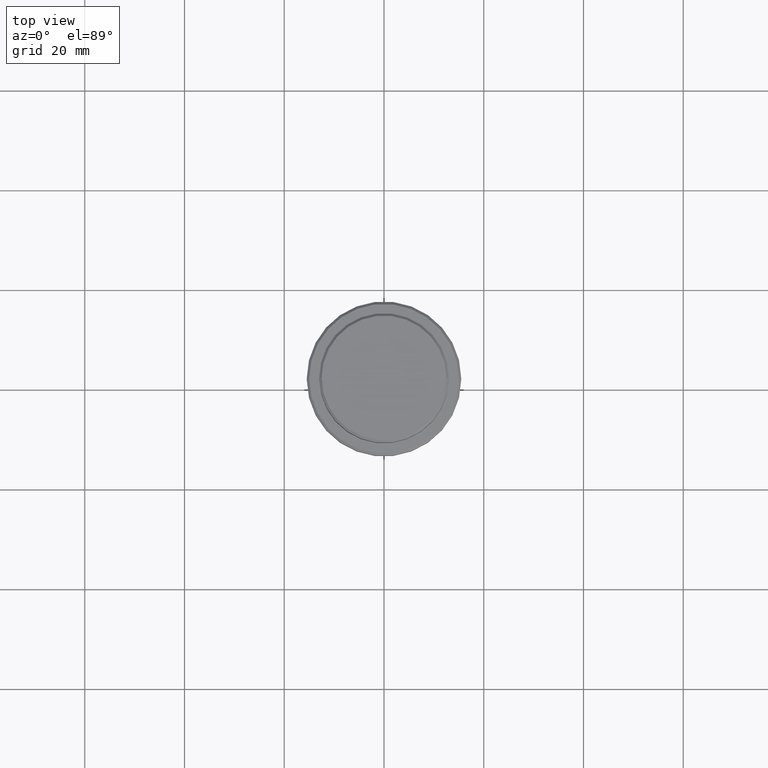
[diagram: clean part render]
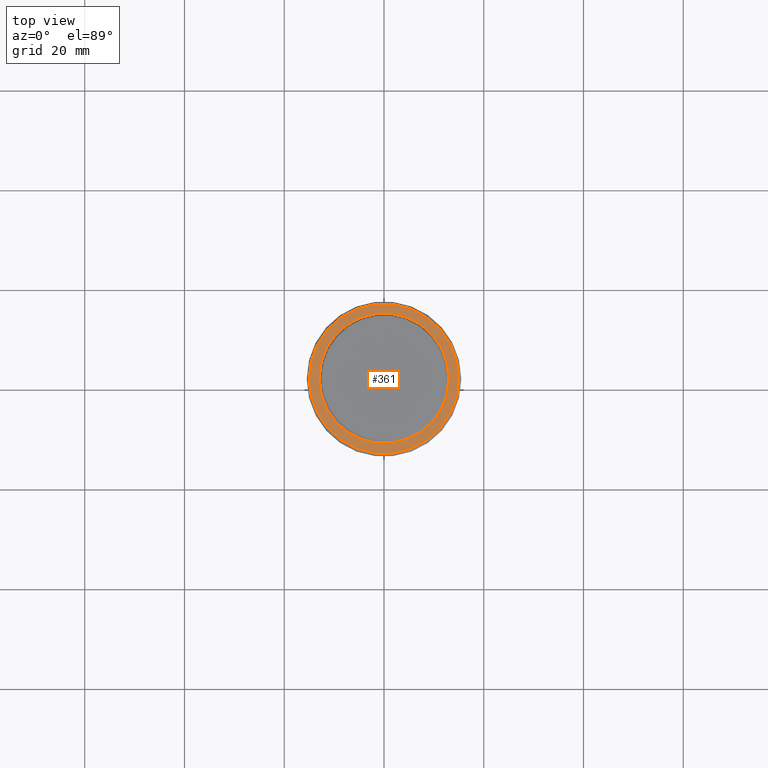
[diagram: same view with one face highlighted and labeled with its STEP entity id]
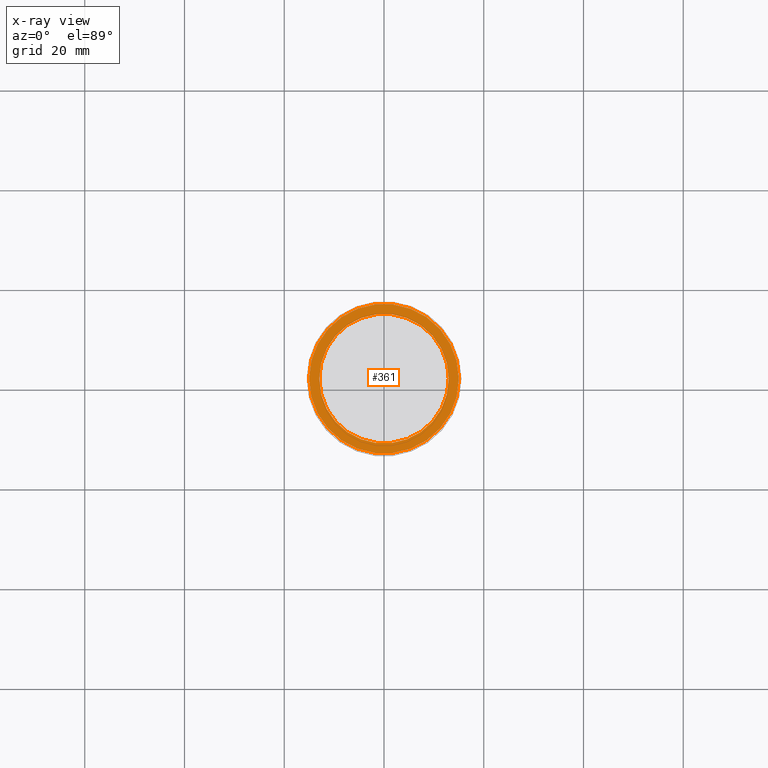
[diagram: x-ray of the same camera — body ghosted, the highlighted face saturated]
A machine part, top view. The second image highlights one B-rep face of the part: STEP entity #361.
The next image is the same camera in x-ray: the body ghosted, the highlighted face saturated — about 0% of this face is hidden behind the body in this view.
In plain terms, the highlighted planar face has unit normal (0, -0, 1).
Its self-contained STEP definition (entity closure, byte-faithful):
#1 = FACE_OUTER_BOUND ( 'NONE', #141, .T. ) ;
#73 = VERTEX_POINT ( 'NONE', #871 ) ;
#141 = EDGE_LOOP ( 'NONE', ( #609, #455 ) ) ;
#184 = CIRCLE ( 'NONE', #712, 12.99999999999999467 ) ;
#202 = EDGE_CURVE ( 'NONE', #73, #1403, #1000, .T. ) ;
#227 = CARTESIAN_POINT ( 'NONE',  ( 0.000000000000000000, 0.000000000000000000, -9.000000000000000000 ) ) ;
#228 = AXIS2_PLACEMENT_3D ( 'NONE', #1372, #372, #1268 ) ;
#361 = ADVANCED_FACE ( 'NONE', ( #1, #1089 ), #1414, .T. ) ;
#369 = DIRECTION ( 'NONE',  ( 1.000000000000000000, 0.000000000000000000, 0.000000000000000000 ) ) ;
#372 = DIRECTION ( 'NONE',  ( -0.000000000000000000, -0.000000000000000000, 1.000000000000000000 ) ) ;
#426 = DIRECTION ( 'NONE',  ( 0.000000000000000000, -0.000000000000000000, 1.000000000000000000 ) ) ;
#455 = ORIENTED_EDGE ( 'NONE', *, *, #202, .T. ) ;
#462 = DIRECTION ( 'NONE',  ( -0.000000000000000000, -0.000000000000000000, 1.000000000000000000 ) ) ;
#551 = EDGE_CURVE ( 'NONE', #1403, #73, #861, .T. ) ;
#565 = DIRECTION ( 'NONE',  ( 1.000000000000000000, 0.000000000000000000, 0.000000000000000000 ) ) ;
#609 = ORIENTED_EDGE ( 'NONE', *, *, #551, .T. ) ;
#663 = ORIENTED_EDGE ( 'NONE', *, *, #1098, .T. ) ;
#706 = EDGE_LOOP ( 'NONE', ( #796, #663 ) ) ;
#712 = AXIS2_PLACEMENT_3D ( 'NONE', #1396, #909, #369 ) ;
#763 = VERTEX_POINT ( 'NONE', #1223 ) ;
#783 = CARTESIAN_POINT ( 'NONE',  ( 0.000000000000000000, 0.000000000000000000, -9.000000000000000000 ) ) ;
#785 = DIRECTION ( 'NONE',  ( 1.000000000000000000, 0.000000000000000000, 0.000000000000000000 ) ) ;
#796 = ORIENTED_EDGE ( 'NONE', *, *, #963, .T. ) ;
#857 = DIRECTION ( 'NONE',  ( 1.000000000000000000, 0.000000000000000000, 0.000000000000000000 ) ) ;
#861 = CIRCLE ( 'NONE', #1292, 15.00000000000002665 ) ;
#871 = CARTESIAN_POINT ( 'NONE',  ( 15.00000000000002665, 1.867586368699715348E-15, -9.000000000000000000 ) ) ;
#909 = DIRECTION ( 'NONE',  ( 0.000000000000000000, 0.000000000000000000, -1.000000000000000000 ) ) ;
#963 = EDGE_CURVE ( 'NONE', #1164, #763, #1075, .T. ) ;
#1000 = CIRCLE ( 'NONE', #228, 15.00000000000002665 ) ;
#1070 = AXIS2_PLACEMENT_3D ( 'NONE', #1188, #426, #857 ) ;
#1075 = CIRCLE ( 'NONE', #1099, 12.99999999999999467 ) ;
#1076 = CARTESIAN_POINT ( 'NONE',  ( 12.99999999999999467, 0.000000000000000000, -9.000000000000000000 ) ) ;
#1089 = FACE_BOUND ( 'NONE', #706, .T. ) ;
#1098 = EDGE_CURVE ( 'NONE', #763, #1164, #184, .T. ) ;
#1099 = AXIS2_PLACEMENT_3D ( 'NONE', #227, #1226, #785 ) ;
#1164 = VERTEX_POINT ( 'NONE', #1076 ) ;
#1188 = CARTESIAN_POINT ( 'NONE',  ( 0.000000000000000000, 12.49999999999999289, -9.000000000000000000 ) ) ;
#1223 = CARTESIAN_POINT ( 'NONE',  ( -12.99999999999999467, 1.592040838891558504E-15, -9.000000000000000000 ) ) ;
#1226 = DIRECTION ( 'NONE',  ( 0.000000000000000000, 0.000000000000000000, -1.000000000000000000 ) ) ;
#1268 = DIRECTION ( 'NONE',  ( 1.000000000000000000, 0.000000000000000000, 0.000000000000000000 ) ) ;
#1288 = CARTESIAN_POINT ( 'NONE',  ( -15.00000000000002665, 0.000000000000000000, -9.000000000000000000 ) ) ;
#1292 = AXIS2_PLACEMENT_3D ( 'NONE', #783, #462, #565 ) ;
#1372 = CARTESIAN_POINT ( 'NONE',  ( 0.000000000000000000, 0.000000000000000000, -9.000000000000000000 ) ) ;
#1396 = CARTESIAN_POINT ( 'NONE',  ( 0.000000000000000000, 0.000000000000000000, -9.000000000000000000 ) ) ;
#1403 = VERTEX_POINT ( 'NONE', #1288 ) ;
#1414 = PLANE ( 'NONE',  #1070 ) ;